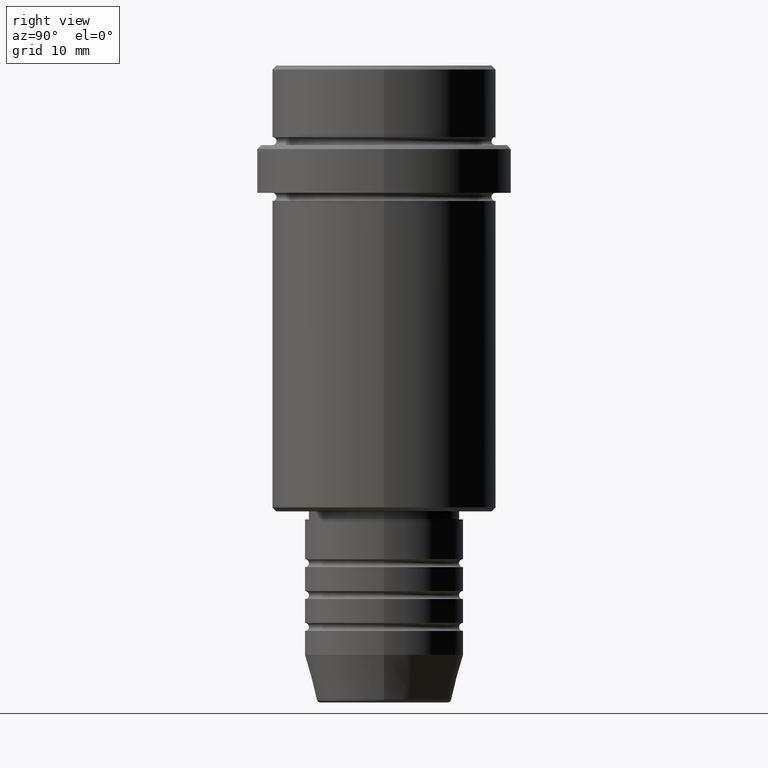
[diagram: clean part render]
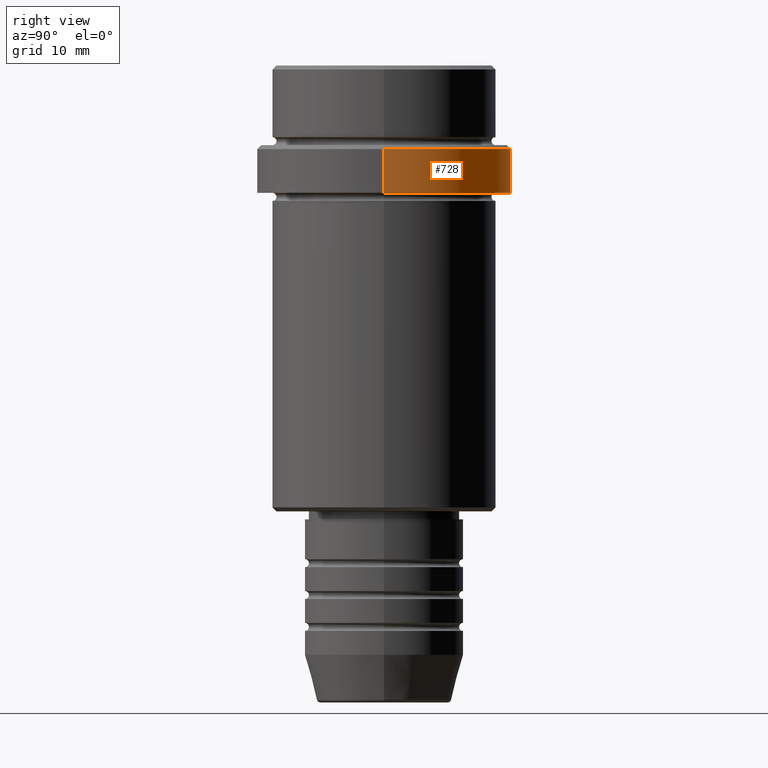
[diagram: same view with one face highlighted and labeled with its STEP entity id]
A machine part, right view. The second image highlights one B-rep face of the part: STEP entity #728.
In plain terms, the highlighted cylindrical surface (partial cylindrical patch) has radius 16 mm, axis along (-0, -0, 1).
Its self-contained STEP definition (entity closure, byte-faithful):
#18 = VECTOR ( 'NONE', #1261, 1000.000000000000000 ) ;
#84 = EDGE_CURVE ( 'NONE', #811, #488, #547, .T. ) ;
#85 = VERTEX_POINT ( 'NONE', #1415 ) ;
#93 = ORIENTED_EDGE ( 'NONE', *, *, #1307, .F. ) ;
#104 = DIRECTION ( 'NONE',  ( 1.000000000000000000, 0.000000000000000000, 0.000000000000000000 ) ) ;
#188 = CYLINDRICAL_SURFACE ( 'NONE', #370, 15.99999999999999645 ) ;
#191 = EDGE_CURVE ( 'NONE', #488, #308, #780, .T. ) ;
#196 = ORIENTED_EDGE ( 'NONE', *, *, #84, .T. ) ;
#308 = VERTEX_POINT ( 'NONE', #936 ) ;
#357 = CARTESIAN_POINT ( 'NONE',  ( -15.99999999999999645, 1.959434878635764737E-15, 0.000000000000000000 ) ) ;
#370 = AXIS2_PLACEMENT_3D ( 'NONE', #938, #394, #104 ) ;
#388 = AXIS2_PLACEMENT_3D ( 'NONE', #1381, #1371, #730 ) ;
#394 = DIRECTION ( 'NONE',  ( -0.000000000000000000, -0.000000000000000000, 1.000000000000000000 ) ) ;
#404 = LINE ( 'NONE', #1180, #18 ) ;
#488 = VERTEX_POINT ( 'NONE', #825 ) ;
#547 = LINE ( 'NONE', #357, #930 ) ;
#619 = EDGE_CURVE ( 'NONE', #85, #811, #682, .T. ) ;
#682 = CIRCLE ( 'NONE', #975, 15.99999999999999645 ) ;
#728 = ADVANCED_FACE ( 'NONE', ( #1168 ), #188, .T. ) ;
#730 = DIRECTION ( 'NONE',  ( 1.000000000000000000, 0.000000000000000000, 0.000000000000000000 ) ) ;
#764 = DIRECTION ( 'NONE',  ( -0.000000000000000000, -0.000000000000000000, 1.000000000000000000 ) ) ;
#770 = CARTESIAN_POINT ( 'NONE',  ( -15.99999999999999645, 1.959434878635764737E-15, -16.00000000000000000 ) ) ;
#780 = CIRCLE ( 'NONE', #388, 15.99999999999999645 ) ;
#790 = DIRECTION ( 'NONE',  ( 1.000000000000000000, 0.000000000000000000, 0.000000000000000000 ) ) ;
#811 = VERTEX_POINT ( 'NONE', #770 ) ;
#825 = CARTESIAN_POINT ( 'NONE',  ( -15.99999999999999645, 1.959434878635764737E-15, -10.49999999999998579 ) ) ;
#930 = VECTOR ( 'NONE', #764, 1000.000000000000000 ) ;
#936 = CARTESIAN_POINT ( 'NONE',  ( 15.99999999999999645, 0.000000000000000000, -10.49999999999998579 ) ) ;
#938 = CARTESIAN_POINT ( 'NONE',  ( 0.000000000000000000, 0.000000000000000000, 0.000000000000000000 ) ) ;
#965 = ORIENTED_EDGE ( 'NONE', *, *, #619, .T. ) ;
#975 = AXIS2_PLACEMENT_3D ( 'NONE', #1109, #1285, #790 ) ;
#1026 = ORIENTED_EDGE ( 'NONE', *, *, #191, .T. ) ;
#1109 = CARTESIAN_POINT ( 'NONE',  ( 0.000000000000000000, 0.000000000000000000, -16.00000000000000000 ) ) ;
#1143 = EDGE_LOOP ( 'NONE', ( #965, #196, #1026, #93 ) ) ;
#1168 = FACE_OUTER_BOUND ( 'NONE', #1143, .T. ) ;
#1180 = CARTESIAN_POINT ( 'NONE',  ( 15.99999999999999645, 0.000000000000000000, 0.000000000000000000 ) ) ;
#1261 = DIRECTION ( 'NONE',  ( -0.000000000000000000, -0.000000000000000000, 1.000000000000000000 ) ) ;
#1285 = DIRECTION ( 'NONE',  ( -0.000000000000000000, -0.000000000000000000, 1.000000000000000000 ) ) ;
#1307 = EDGE_CURVE ( 'NONE', #85, #308, #404, .T. ) ;
#1371 = DIRECTION ( 'NONE',  ( 0.000000000000000000, 0.000000000000000000, -1.000000000000000000 ) ) ;
#1381 = CARTESIAN_POINT ( 'NONE',  ( 0.000000000000000000, 0.000000000000000000, -10.49999999999998579 ) ) ;
#1415 = CARTESIAN_POINT ( 'NONE',  ( 15.99999999999999645, 0.000000000000000000, -16.00000000000000000 ) ) ;